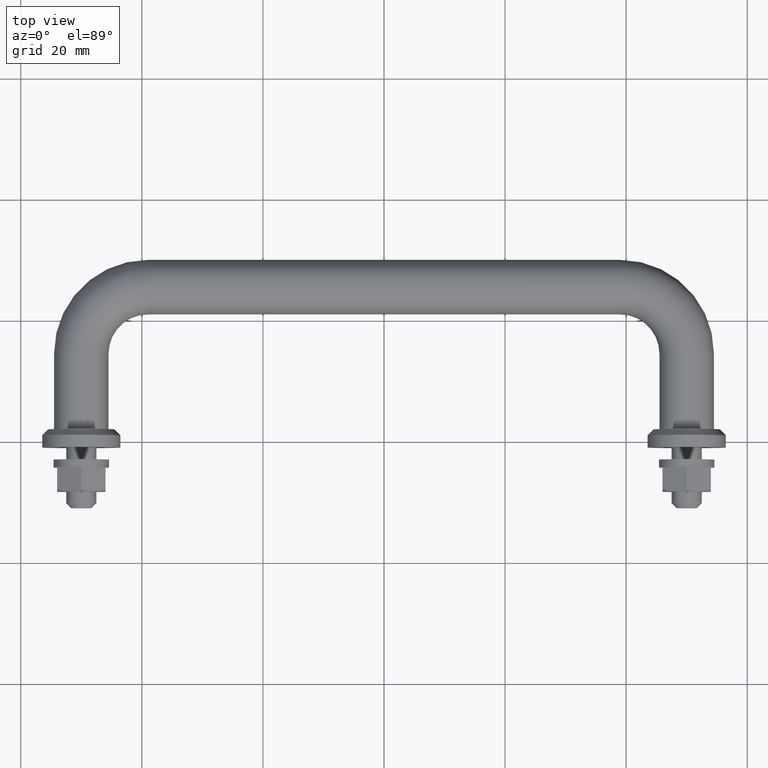
[diagram: clean part render]
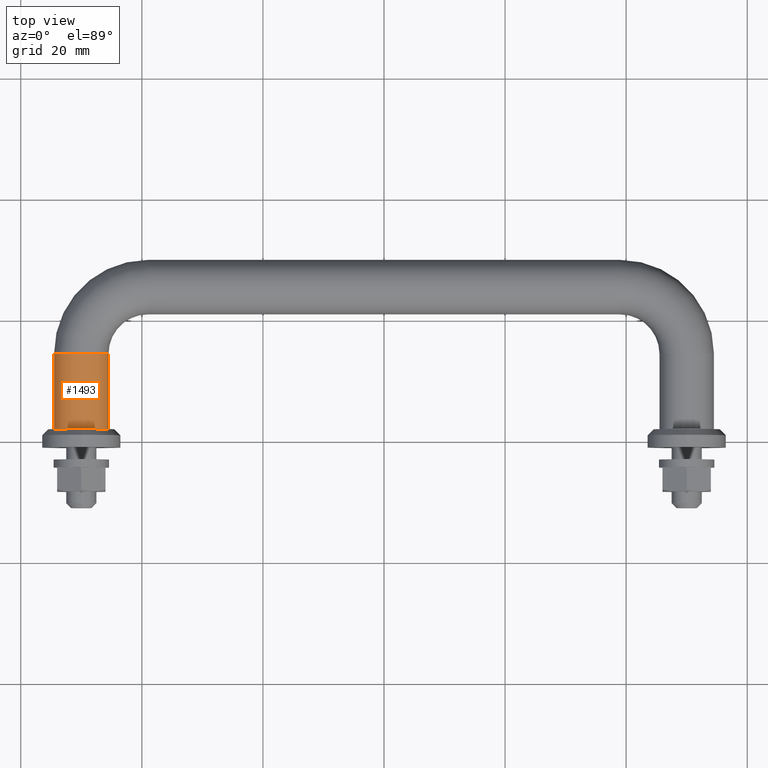
[diagram: same view with one face highlighted and labeled with its STEP entity id]
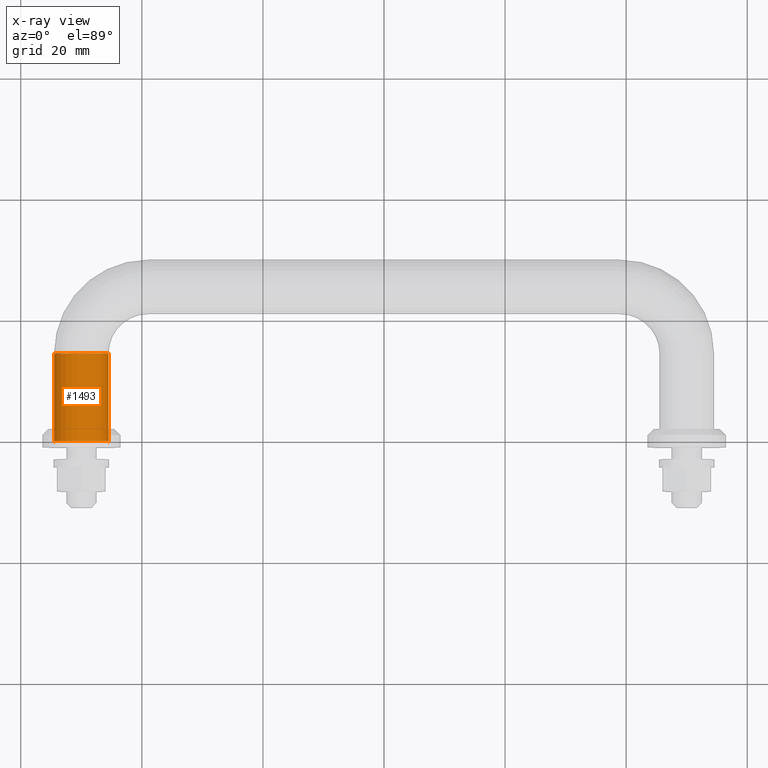
[diagram: x-ray of the same camera — body ghosted, the highlighted face saturated]
A machine part, top view. The second image highlights one B-rep face of the part: STEP entity #1493.
The next image is the same camera in x-ray: the body ghosted, the highlighted face saturated — about 0% of this face is hidden behind the body in this view.
In plain terms, the highlighted cylindrical surface (edge-blend (fillet) strip) has radius 4.5 mm, axis along (0, -1, 0).
Its self-contained STEP definition (entity closure, byte-faithful):
#24 = CARTESIAN_POINT ( 'NONE',  ( -54.49999999999999300, 0.0000000000000000000, 5.510910596163087600E-016 ) ) ;
#244 = CIRCLE ( 'NONE', #637, 4.499999999999998200 ) ;
#300 = CARTESIAN_POINT ( 'NONE',  ( -45.50000000000002100, 14.50000000000002100, 0.0000000000000000000 ) ) ;
#411 = AXIS2_PLACEMENT_3D ( 'NONE', #1673, #991, #1372 ) ;
#450 = LINE ( 'NONE', #1703, #537 ) ;
#474 = DIRECTION ( 'NONE',  ( 1.435633221498045900E-015, -1.000000000000000000, -0.0000000000000000000 ) ) ;
#481 = DIRECTION ( 'NONE',  ( 0.0000000000000000000, 0.0000000000000000000, 1.000000000000000000 ) ) ;
#518 = LINE ( 'NONE', #300, #1217 ) ;
#537 = VECTOR ( 'NONE', #1428, 1000.000000000000000 ) ;
#543 = EDGE_CURVE ( 'NONE', #1053, #746, #1765, .T. ) ;
#547 = VERTEX_POINT ( 'NONE', #1561 ) ;
#635 = DIRECTION ( 'NONE',  ( 0.0000000000000000000, 1.000000000000000000, 0.0000000000000000000 ) ) ;
#637 = AXIS2_PLACEMENT_3D ( 'NONE', #734, #1595, #481 ) ;
#734 = CARTESIAN_POINT ( 'NONE',  ( -49.99999999999999300, 0.0000000000000000000, 0.0000000000000000000 ) ) ;
#740 = ORIENTED_EDGE ( 'NONE', *, *, #1113, .T. ) ;
#746 = VERTEX_POINT ( 'NONE', #1336 ) ;
#779 = CARTESIAN_POINT ( 'NONE',  ( -50.00000000000001400, 14.50000000000001400, 0.0000000000000000000 ) ) ;
#991 = DIRECTION ( 'NONE',  ( 1.435633221498045900E-015, -1.000000000000000000, -0.0000000000000000000 ) ) ;
#1004 = CYLINDRICAL_SURFACE ( 'NONE', #411, 4.499999999999997300 ) ;
#1053 = VERTEX_POINT ( 'NONE', #1472 ) ;
#1072 = ORIENTED_EDGE ( 'NONE', *, *, #1389, .T. ) ;
#1113 = EDGE_CURVE ( 'NONE', #1053, #1644, #450, .T. ) ;
#1217 = VECTOR ( 'NONE', #474, 1000.000000000000000 ) ;
#1231 = EDGE_CURVE ( 'NONE', #746, #547, #518, .T. ) ;
#1250 = EDGE_LOOP ( 'NONE', ( #1629, #740, #1072, #1442 ) ) ;
#1336 = CARTESIAN_POINT ( 'NONE',  ( -45.50000000000002100, 14.50000000000001400, 0.0000000000000000000 ) ) ;
#1372 = DIRECTION ( 'NONE',  ( 1.000000000000000000, 1.541976423090496000E-015, 0.0000000000000000000 ) ) ;
#1375 = AXIS2_PLACEMENT_3D ( 'NONE', #779, #635, #1473 ) ;
#1389 = EDGE_CURVE ( 'NONE', #1644, #547, #244, .T. ) ;
#1428 = DIRECTION ( 'NONE',  ( 1.435633221498045900E-015, -1.000000000000000000, -0.0000000000000000000 ) ) ;
#1442 = ORIENTED_EDGE ( 'NONE', *, *, #1231, .F. ) ;
#1472 = CARTESIAN_POINT ( 'NONE',  ( -54.50000000000001400, 14.50000000000001400, 5.510910596163096500E-016 ) ) ;
#1473 = DIRECTION ( 'NONE',  ( 0.0000000000000000000, 0.0000000000000000000, 1.000000000000000000 ) ) ;
#1493 = ADVANCED_FACE ( 'NONE', ( #1748 ), #1004, .T. ) ;
#1561 = CARTESIAN_POINT ( 'NONE',  ( -45.50000000000000000, 0.0000000000000000000, 0.0000000000000000000 ) ) ;
#1595 = DIRECTION ( 'NONE',  ( 0.0000000000000000000, 1.000000000000000000, 0.0000000000000000000 ) ) ;
#1629 = ORIENTED_EDGE ( 'NONE', *, *, #543, .F. ) ;
#1644 = VERTEX_POINT ( 'NONE', #24 ) ;
#1673 = CARTESIAN_POINT ( 'NONE',  ( -50.00000000000001400, 14.50000000000001400, 0.0000000000000000000 ) ) ;
#1703 = CARTESIAN_POINT ( 'NONE',  ( -54.50000000000001400, 14.50000000000000700, 5.510910596163086600E-016 ) ) ;
#1748 = FACE_OUTER_BOUND ( 'NONE', #1250, .T. ) ;
#1765 = CIRCLE ( 'NONE', #1375, 4.499999999999998200 ) ;